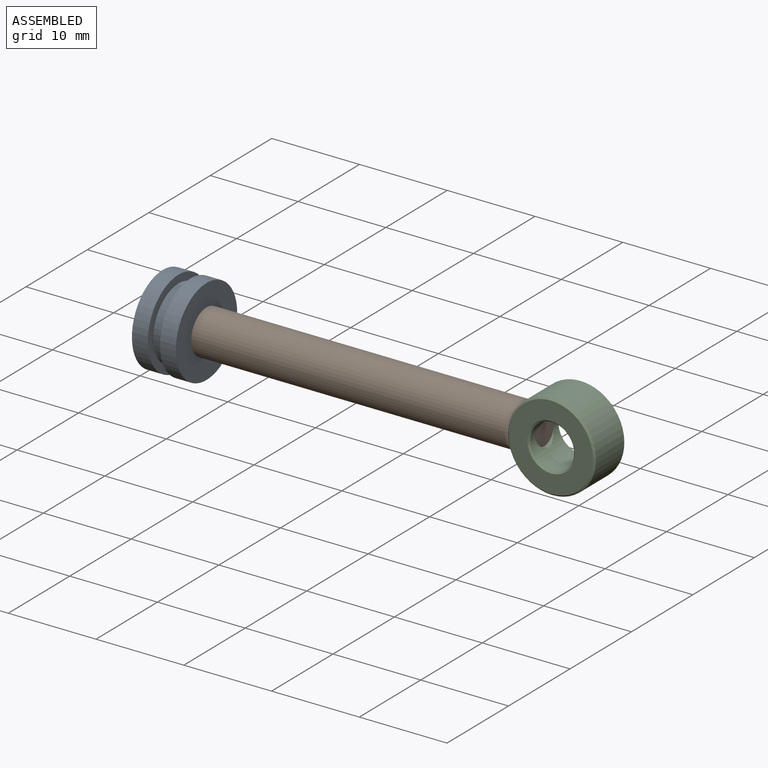
[diagram: assembled view]
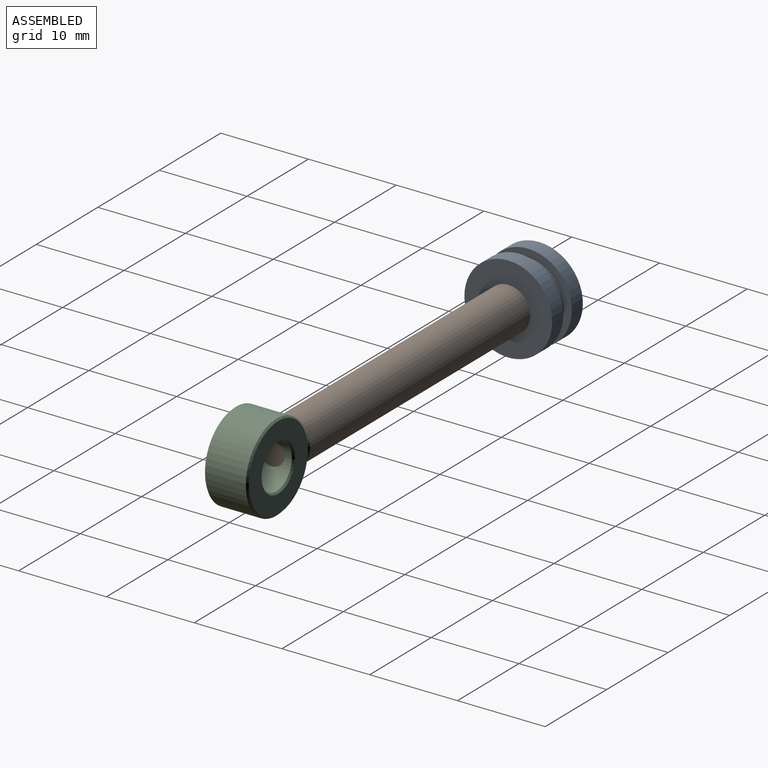
[diagram: assembled view, second angle]
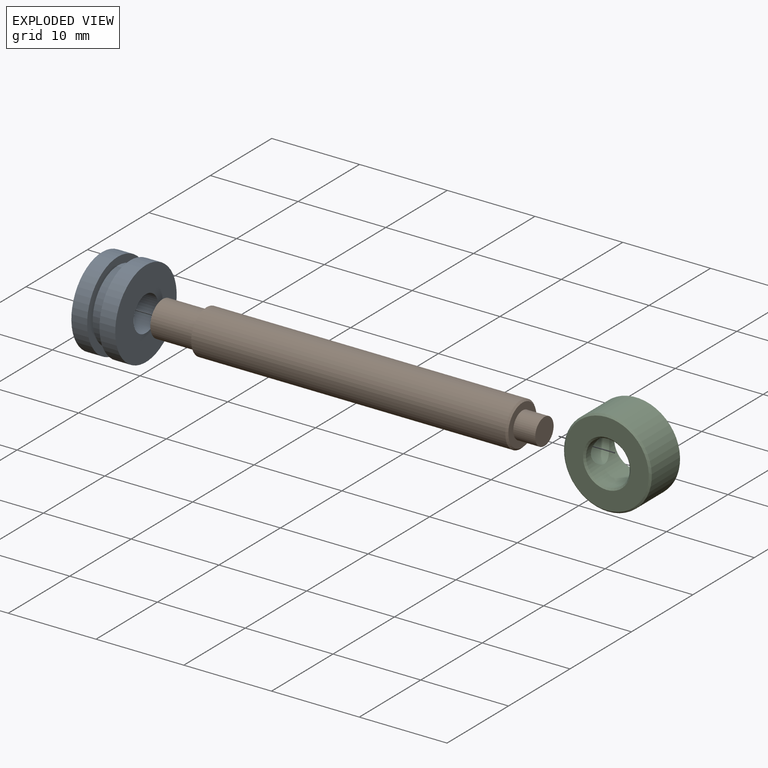
[diagram: exploded view]
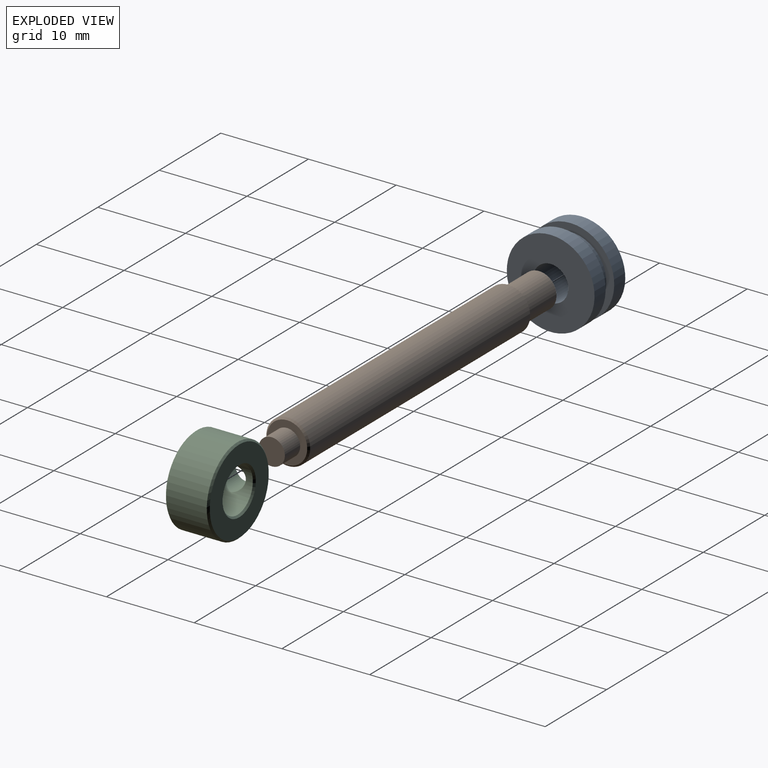
[diagram: exploded view, second angle]
ASSEMBLY  parts=3 mates=3
PART A: 8 faces, bbox 5x10x10 mm
  f0: plane 10x10mm, normal (1,0,0), area 25.7mm2, adj f1,f7
  f1: cylinder r=5mm len=10mm, axis (-1,0,0), area 56.5mm2, adj f0,f2
  f2: plane 10x10mm, normal (-1,0,0), area 66mm2, adj f1,f3
  f3: cylinder r=2mm len=5mm, axis (-1,0,0), area 62.8mm2, adj f2,f4
  f4: plane 10x10mm, normal (1,0,0), area 66mm2, adj f3,f5
  f5: cylinder r=5mm len=10mm, axis (-1,0,0), area 56.5mm2, adj f4,f6
  f6: plane 10x10mm, normal (-1,0,0), area 25.7mm2, adj f5,f7
  f7: cylinder r=4.1mm len=8.2mm, axis (-1,0,0), area 36.1mm2, adj f0,f6
PART B: 8 faces, bbox 43.5x5x5 mm
  f0: cylinder r=2.5mm len=35.8mm, axis (-1,0,0), area 562.3mm2, adj f2,f7
  f1: plane 4.6x4.6mm, normal (1,0,0), area 9.6mm2, adj f3,f7
  f2: plane 5x5mm, normal (-1,0,0), area 7.1mm2, adj f0,f5
  f3: cylinder r=1.5mm len=3mm, axis (-1,0,0), area 23.6mm2, adj f1,f4
  f4: plane 3x3mm, normal (1,0,0), area 7.1mm2, adj f3
  f5: cylinder r=2mm len=5mm, axis (1,0,0), area 62.8mm2, adj f2,f6
  f6: plane 4x4mm, normal (-1,0,0), area 12.6mm2, adj f5
  f7: cone r=2.3mm half-angle=45deg, axis (-1,0,0), area 4.3mm2, adj f0,f1
PART C: 9 faces, bbox 10x5x10 mm
  f0: cylinder r=2.5mm len=5mm, axis (0,1,0), area 64.8mm2, adj f4,f5,f6
  f1: cylinder r=5mm len=10mm, axis (0,1,0), area 137.4mm2, adj f4,f7,f8
  f2: plane 9.6x9.6mm, normal (0,-1,0), area 49.5mm2, adj f5,f7
  f3: plane 9.6x9.6mm, normal (0,1,0), area 49.5mm2, adj f6,f8
  f4: cylinder r=1.5mm len=3mm, axis (1,0,0), area 24.8mm2, adj f0,f1
  f5: cone r=2.5mm half-angle=45deg, axis (0,-1,0), area 4.6mm2, adj f0,f2
  f6: cone r=2.7mm half-angle=45deg, axis (0,1,0), area 4.6mm2, adj f0,f3
  f7: cone r=4.8mm half-angle=45deg, axis (0,1,0), area 8.7mm2, adj f1,f2
  f8: cone r=5mm half-angle=45deg, axis (0,-1,0), area 8.7mm2, adj f1,f3
PLACE A t=(-25.9,1.4,1.42)mm
PLACE B t=(-23.4,1.4,1.42)mm
PLACE C t=(17.6,1.4,1.42)mm
MATE cylindrical C.f4 <-> B.f3  axis (1,0,0) through (14.1,1.4,1.42)mm
MATE cylindrical B.f0 <-> A.f1  axis (-1,0,0) through (-5.5,1.4,1.42)mm
MATE planar B.f0 <-> A.f1  axis (-1,0,0) through (-23.4,1.4,1.42)mm
